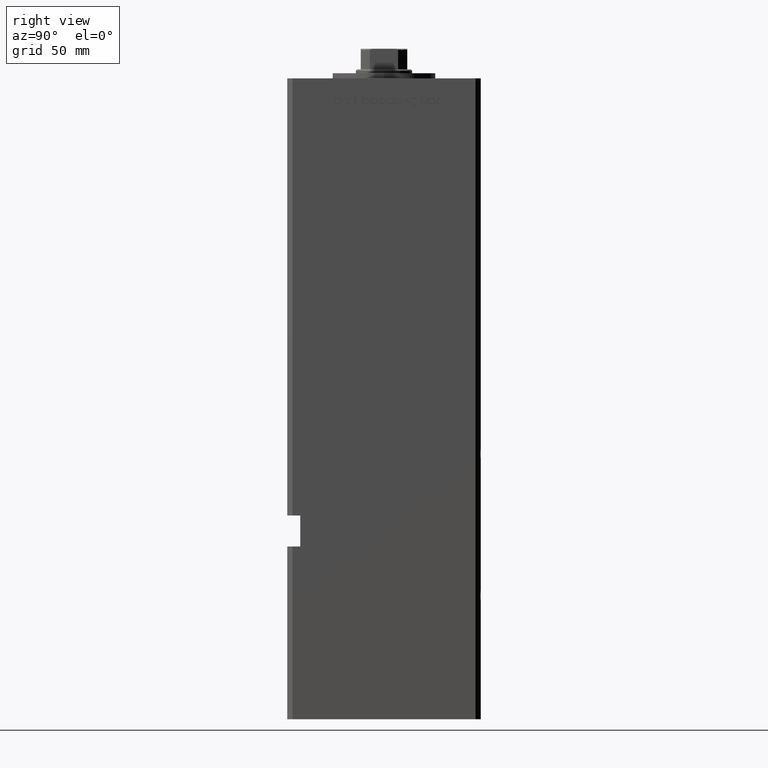
[diagram: clean part render]
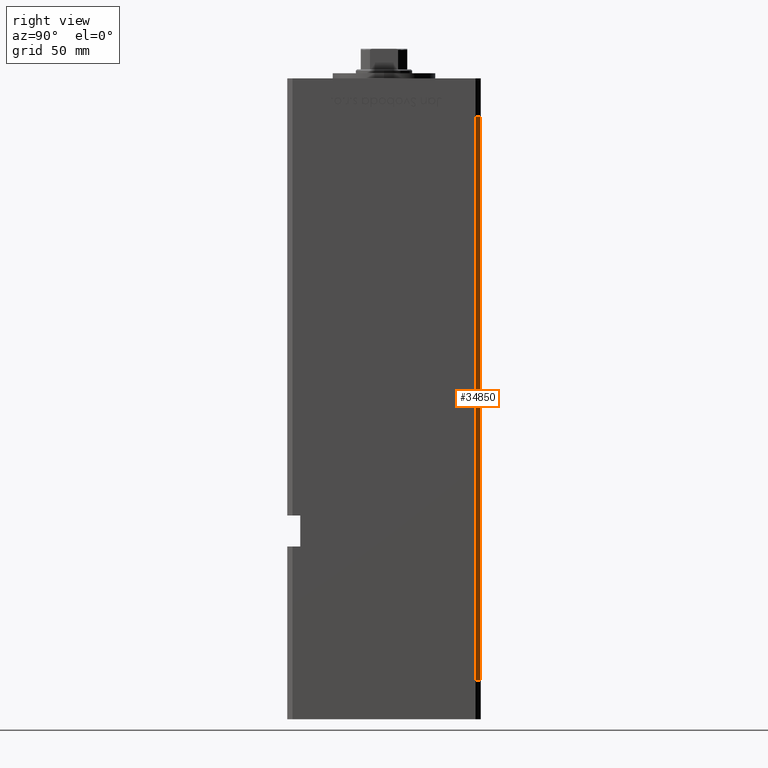
[diagram: same view with one face highlighted and labeled with its STEP entity id]
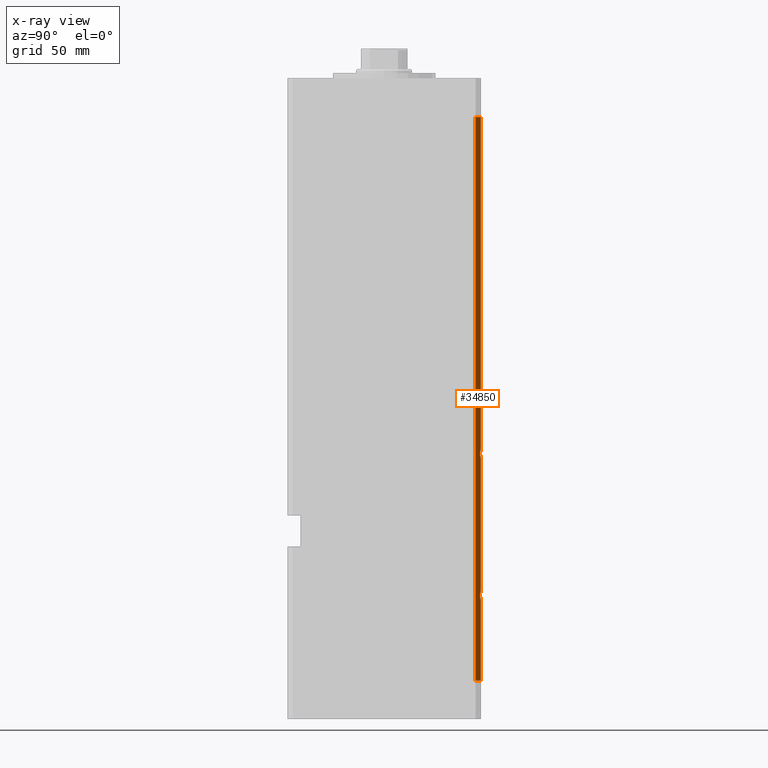
[diagram: x-ray of the same camera — body ghosted, the highlighted face saturated]
A machine part, right view. The second image highlights one B-rep face of the part: STEP entity #34850.
The next image is the same camera in x-ray: the body ghosted, the highlighted face saturated — about 0% of this face is hidden behind the body in this view.
In plain terms, the highlighted planar face has unit normal (0.7071, 0.7071, 0).
Its self-contained STEP definition (entity closure, byte-faithful):
#128 = CARTESIAN_POINT ( 'NONE',  ( 40.50000000000000711, 37.50000000000000000, 218.5000000000000000 ) ) ;
#1462 = CARTESIAN_POINT ( 'NONE',  ( 40.83505154639176027, 37.16494845360823973, 88.68570748890169853 ) ) ;
#1777 = CARTESIAN_POINT ( 'NONE',  ( 40.50000000000000711, 37.50000000000000000, 0.000000000000000000 ) ) ;
#1957 = EDGE_CURVE ( 'NONE', #36373, #43770, #29365, .T. ) ;
#4150 = PLANE ( 'NONE',  #33884 ) ;
#4919 = CARTESIAN_POINT ( 'NONE',  ( 40.83505154639174606, 37.16494845360825394, 33.68570748890166300 ) ) ;
#5644 = DIRECTION ( 'NONE',  ( -0.000000000000000000, -0.000000000000000000, -1.000000000000000000 ) ) ;
#6417 = EDGE_CURVE ( 'NONE', #20406, #36373, #29326, .T. ) ;
#8403 = LINE ( 'NONE', #33154, #8874 ) ;
#8623 = CARTESIAN_POINT ( 'NONE',  ( 40.50000000000000711, 37.50000000000000000, 218.5000000000000000 ) ) ;
#8874 = VECTOR ( 'NONE', #24542, 1000.000000000000000 ) ;
#9316 =( BOUNDED_CURVE ( )  B_SPLINE_CURVE ( 3, ( #41762, #4919, #42545, #18055 ),
 .UNSPECIFIED., .F., .F. ) 
 B_SPLINE_CURVE_WITH_KNOTS ( ( 4, 4 ),
 ( 2.894783720120224668, 3.388401587059360676 ),
 .UNSPECIFIED. ) 
 CURVE ( )  GEOMETRIC_REPRESENTATION_ITEM ( )  RATIONAL_B_SPLINE_CURVE ( ( 1.000000000000000000, 0.9797979797979805561, 0.9797979797979805561, 1.000000000000000000 ) ) 
 REPRESENTATION_ITEM ( '' )  );
#9573 = VECTOR ( 'NONE', #13459, 1000.000000000000114 ) ;
#10211 = CARTESIAN_POINT ( 'NONE',  ( 42.50000000000001421, 35.50000000000000711, 0.000000000000000000 ) ) ;
#12747 = ORIENTED_EDGE ( 'NONE', *, *, #44315, .F. ) ;
#13182 = VECTOR ( 'NONE', #20904, 1000.000000000000114 ) ;
#13220 = VERTEX_POINT ( 'NONE', #20198 ) ;
#13459 = DIRECTION ( 'NONE',  ( 0.7071067811865500152, -0.7071067811865451302, 0.000000000000000000 ) ) ;
#13540 = ORIENTED_EDGE ( 'NONE', *, *, #6417, .T. ) ;
#13545 = CARTESIAN_POINT ( 'NONE',  ( 40.50000000000000711, 37.50000000000000000, 90.01556443707467281 ) ) ;
#14796 =( BOUNDED_CURVE ( )  B_SPLINE_CURVE ( 3, ( #13545, #1462, #17834, #34516 ),
 .UNSPECIFIED., .F., .T. ) 
 B_SPLINE_CURVE_WITH_KNOTS ( ( 4, 4 ),
 ( 2.894783720120215786, 3.388401587059369113 ),
 .UNSPECIFIED. ) 
 CURVE ( )  GEOMETRIC_REPRESENTATION_ITEM ( )  RATIONAL_B_SPLINE_CURVE ( ( 1.000000000000000000, 0.9797979797979792238, 0.9797979797979792238, 1.000000000000000000 ) ) 
 REPRESENTATION_ITEM ( '' )  );
#16902 = EDGE_CURVE ( 'NONE', #25898, #45872, #8403, .T. ) ;
#17737 = CARTESIAN_POINT ( 'NONE',  ( 40.50000000000000711, 37.50000000000000000, 218.5000000000000000 ) ) ;
#17834 = CARTESIAN_POINT ( 'NONE',  ( 40.83505154639176737, 37.16494845360823263, 87.31429251109830147 ) ) ;
#18055 = CARTESIAN_POINT ( 'NONE',  ( 40.50000000000000711, 37.50000000000000000, 30.98443556292539824 ) ) ;
#20198 = CARTESIAN_POINT ( 'NONE',  ( 40.50000000000000711, 37.50000000000000000, 90.01556443707467281 ) ) ;
#20207 = VERTEX_POINT ( 'NONE', #1777 ) ;
#20406 = VERTEX_POINT ( 'NONE', #36163 ) ;
#20904 = DIRECTION ( 'NONE',  ( 0.7071067811865500152, -0.7071067811865451302, 0.000000000000000000 ) ) ;
#21328 = ORIENTED_EDGE ( 'NONE', *, *, #40204, .F. ) ;
#24001 = VECTOR ( 'NONE', #38246, 1000.000000000000000 ) ;
#24053 = CARTESIAN_POINT ( 'NONE',  ( 40.50000000000000711, 37.50000000000000000, 30.98443556292539824 ) ) ;
#24254 = ORIENTED_EDGE ( 'NONE', *, *, #16902, .F. ) ;
#24311 = FACE_OUTER_BOUND ( 'NONE', #36827, .T. ) ;
#24542 = DIRECTION ( 'NONE',  ( -0.000000000000000000, -0.000000000000000000, -1.000000000000000000 ) ) ;
#24911 = CARTESIAN_POINT ( 'NONE',  ( 40.50000000000000711, 37.50000000000000000, 218.5000000000000000 ) ) ;
#24948 = LINE ( 'NONE', #41361, #13182 ) ;
#25898 = VERTEX_POINT ( 'NONE', #35886 ) ;
#26344 = LINE ( 'NONE', #17737, #34987 ) ;
#26542 = ORIENTED_EDGE ( 'NONE', *, *, #41917, .F. ) ;
#28672 = DIRECTION ( 'NONE',  ( -0.000000000000000000, -0.000000000000000000, -1.000000000000000000 ) ) ;
#29188 = ORIENTED_EDGE ( 'NONE', *, *, #31369, .F. ) ;
#29326 = LINE ( 'NONE', #8623, #9573 ) ;
#29365 = LINE ( 'NONE', #46054, #24001 ) ;
#29474 = LINE ( 'NONE', #24911, #46204 ) ;
#31369 = EDGE_CURVE ( 'NONE', #20207, #43770, #24948, .T. ) ;
#33154 = CARTESIAN_POINT ( 'NONE',  ( 40.50000000000000711, 37.50000000000000000, 218.5000000000000000 ) ) ;
#33884 = AXIS2_PLACEMENT_3D ( 'NONE', #128, #40987, #40720 ) ;
#34516 = CARTESIAN_POINT ( 'NONE',  ( 40.50000000000000711, 37.50000000000000000, 85.98443556292532719 ) ) ;
#34850 = ADVANCED_FACE ( 'NONE', ( #24311 ), #4150, .T. ) ;
#34987 = VECTOR ( 'NONE', #5644, 1000.000000000000000 ) ;
#35319 = ORIENTED_EDGE ( 'NONE', *, *, #52079, .F. ) ;
#35886 = CARTESIAN_POINT ( 'NONE',  ( 40.50000000000000711, 37.50000000000000000, 85.98443556292532719 ) ) ;
#36163 = CARTESIAN_POINT ( 'NONE',  ( 40.50000000000000711, 37.50000000000000000, 218.5000000000000000 ) ) ;
#36373 = VERTEX_POINT ( 'NONE', #41013 ) ;
#36827 = EDGE_LOOP ( 'NONE', ( #21328, #24254, #35319, #26542, #13540, #37042, #29188, #12747 ) ) ;
#37042 = ORIENTED_EDGE ( 'NONE', *, *, #1957, .T. ) ;
#38246 = DIRECTION ( 'NONE',  ( -0.000000000000000000, -0.000000000000000000, -1.000000000000000000 ) ) ;
#40204 = EDGE_CURVE ( 'NONE', #45872, #51961, #9316, .T. ) ;
#40720 = DIRECTION ( 'NONE',  ( -0.7071067811865500152, 0.7071067811865450192, 0.000000000000000000 ) ) ;
#40987 = DIRECTION ( 'NONE',  ( 0.7071067811865450192, 0.7071067811865500152, -0.000000000000000000 ) ) ;
#41013 = CARTESIAN_POINT ( 'NONE',  ( 42.50000000000001421, 35.50000000000000711, 218.5000000000000000 ) ) ;
#41361 = CARTESIAN_POINT ( 'NONE',  ( 40.50000000000000711, 37.50000000000000000, 0.000000000000000000 ) ) ;
#41762 = CARTESIAN_POINT ( 'NONE',  ( 40.50000000000000711, 37.50000000000000000, 35.01556443707459465 ) ) ;
#41917 = EDGE_CURVE ( 'NONE', #20406, #13220, #26344, .T. ) ;
#42545 = CARTESIAN_POINT ( 'NONE',  ( 40.83505154639174606, 37.16494845360826105, 32.31429251109832990 ) ) ;
#42861 = CARTESIAN_POINT ( 'NONE',  ( 40.50000000000000711, 37.50000000000000000, 35.01556443707459465 ) ) ;
#43770 = VERTEX_POINT ( 'NONE', #10211 ) ;
#44315 = EDGE_CURVE ( 'NONE', #51961, #20207, #29474, .T. ) ;
#45872 = VERTEX_POINT ( 'NONE', #42861 ) ;
#46054 = CARTESIAN_POINT ( 'NONE',  ( 42.50000000000001421, 35.50000000000000711, 218.5000000000000000 ) ) ;
#46204 = VECTOR ( 'NONE', #28672, 1000.000000000000000 ) ;
#51961 = VERTEX_POINT ( 'NONE', #24053 ) ;
#52079 = EDGE_CURVE ( 'NONE', #13220, #25898, #14796, .T. ) ;